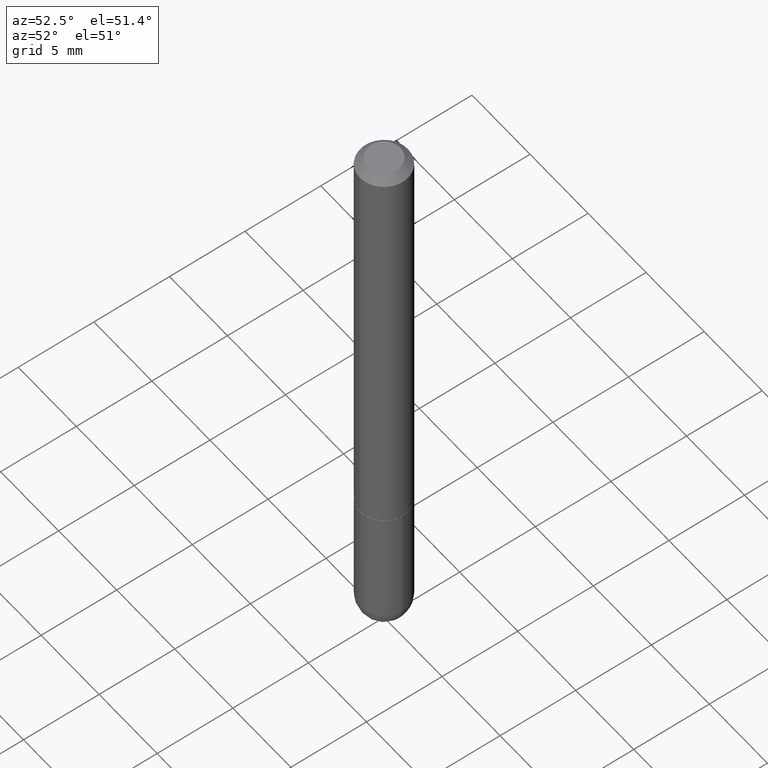
[diagram: clean part render]
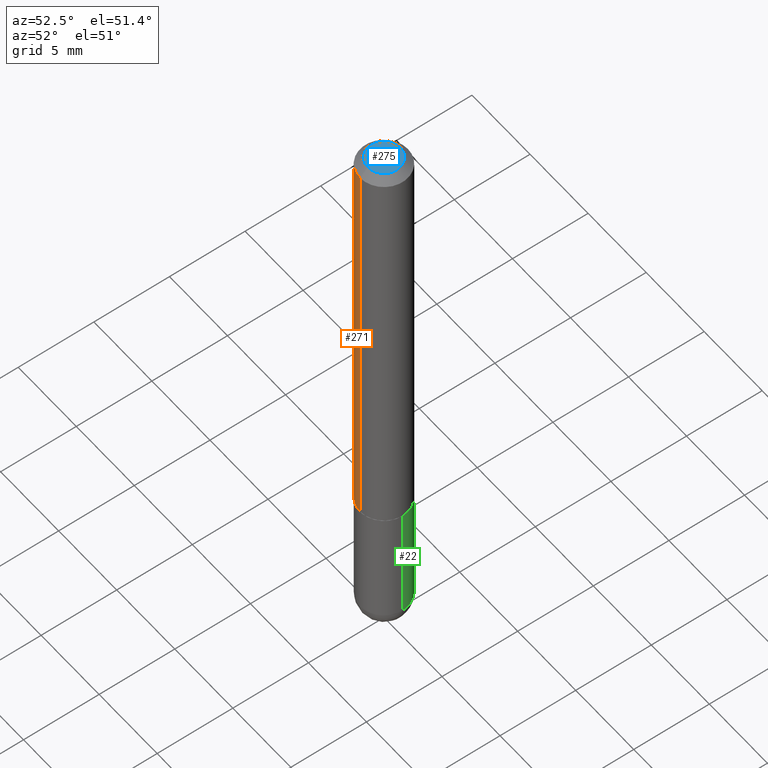
[diagram: same view with three faces highlighted in distinct colors, each labeled with its STEP entity id]
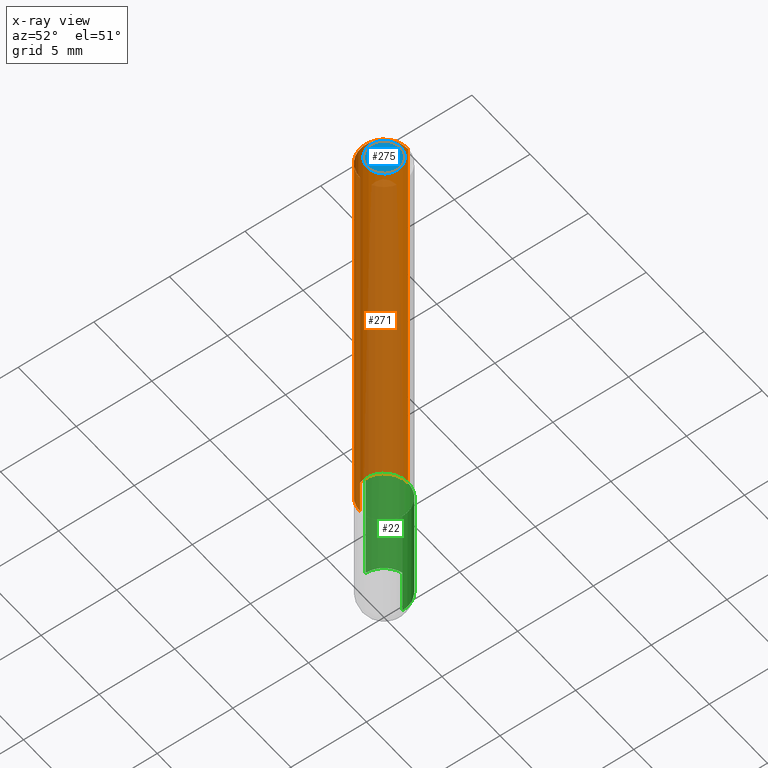
[diagram: x-ray of the same camera — body ghosted, the three highlighted faces saturated]
A machine part, auxiliary view with three faces highlighted in distinct colors.
The next image is the same camera in x-ray (body ghosted, the three faces saturated) — at least one of them is partly hidden behind the body in this view.
Their STEP definitions:

[orange] entity #271 — the highlighted cylindrical surface (edge-blend (fillet) strip) has radius 1.5875 mm, axis along (-0, 0, 1).
#5 = DIRECTION ( 'NONE',  ( -2.466183177392588152E-29, 3.461817180285283687E-15, 1.000000000000000000 ) ) ;
#16 = EDGE_CURVE ( 'NONE', #294, #335, #121, .T. ) ;
#33 = CARTESIAN_POINT ( 'NONE',  ( 4.932366354785193785E-31, -6.923634360570589906E-17, -0.02000000000000006981 ) ) ;
#36 = CYLINDRICAL_SURFACE ( 'NONE', #106, 0.06250000000000000000 ) ;
#42 = LINE ( 'NONE', #203, #337 ) ;
#47 = AXIS2_PLACEMENT_3D ( 'NONE', #33, #5, #228 ) ;
#83 = CARTESIAN_POINT ( 'NONE',  ( 4.364351673553917187E-16, 0.06249999999999988204, -0.02000000000000028491 ) ) ;
#106 = AXIS2_PLACEMENT_3D ( 'NONE', #352, #285, #136 ) ;
#113 = CARTESIAN_POINT ( 'NONE',  ( -4.364351673553642565E-16, -0.06250000000000394129, -1.123999999999999888 ) ) ;
#116 = ORIENTED_EDGE ( 'NONE', *, *, #16, .F. ) ;
#118 = VECTOR ( 'NONE', #186, 39.37007874015748143 ) ;
#121 = LINE ( 'NONE', #222, #118 ) ;
#132 = EDGE_CURVE ( 'NONE', #335, #362, #191, .T. ) ;
#136 = DIRECTION ( 'NONE',  ( -6.982962677686265922E-15, -1.000000000000000000, 3.461817180285283292E-15 ) ) ;
#142 = DIRECTION ( 'NONE',  ( -6.982962677686265133E-15, -1.000000000000000000, 4.370956789862817205E-15 ) ) ;
#167 = AXIS2_PLACEMENT_3D ( 'NONE', #236, #332, #142 ) ;
#171 = DIRECTION ( 'NONE',  ( -2.466183177392588152E-29, 3.461817180285283687E-15, 1.000000000000000000 ) ) ;
#186 = DIRECTION ( 'NONE',  ( -2.466183177392588152E-29, 3.461817180285283687E-15, 1.000000000000000000 ) ) ;
#191 = CIRCLE ( 'NONE', #47, 0.06249999999999995143 ) ;
#193 = FACE_OUTER_BOUND ( 'NONE', #276, .T. ) ;
#203 = CARTESIAN_POINT ( 'NONE',  ( -4.364351673553916201E-16, -0.06250000000000000000, 2.163635737678302058E-16 ) ) ;
#222 = CARTESIAN_POINT ( 'NONE',  ( 4.440892098500625669E-16, 0.06250000000000000000, -2.163635737678302058E-16 ) ) ;
#228 = DIRECTION ( 'NONE',  ( -6.982962677686265922E-15, -1.000000000000000000, 3.483106191921938315E-15 ) ) ;
#233 = CARTESIAN_POINT ( 'NONE',  ( 4.440892098500769143E-16, 0.06249999999999615585, -1.124000000000000332 ) ) ;
#236 = CARTESIAN_POINT ( 'NONE',  ( 2.771989891389269485E-29, -3.891082510640658844E-15, -1.124000000000000110 ) ) ;
#271 = ADVANCED_FACE ( 'NONE', ( #193 ), #36, .T. ) ;
#276 = EDGE_LOOP ( 'NONE', ( #116, #410, #359, #341 ) ) ;
#285 = DIRECTION ( 'NONE',  ( -2.466183177392588152E-29, 3.461817180285283687E-15, 1.000000000000000000 ) ) ;
#294 = VERTEX_POINT ( 'NONE', #233 ) ;
#301 = CARTESIAN_POINT ( 'NONE',  ( -4.287811248607198352E-16, -0.06250000000000001388, -0.01999999999999985123 ) ) ;
#321 = EDGE_CURVE ( 'NONE', #329, #362, #42, .T. ) ;
#329 = VERTEX_POINT ( 'NONE', #113 ) ;
#332 = DIRECTION ( 'NONE',  ( -2.466183177392588152E-29, 3.461817180285283687E-15, 1.000000000000000000 ) ) ;
#335 = VERTEX_POINT ( 'NONE', #83 ) ;
#337 = VECTOR ( 'NONE', #171, 39.37007874015748143 ) ;
#341 = ORIENTED_EDGE ( 'NONE', *, *, #132, .F. ) ;
#343 = CIRCLE ( 'NONE', #167, 0.06250000000000005551 ) ;
#345 = EDGE_CURVE ( 'NONE', #294, #329, #343, .T. ) ;
#352 = CARTESIAN_POINT ( 'NONE',  ( 0.000000000000000000, 0.000000000000000000, 0.000000000000000000 ) ) ;
#359 = ORIENTED_EDGE ( 'NONE', *, *, #321, .T. ) ;
#362 = VERTEX_POINT ( 'NONE', #301 ) ;
#410 = ORIENTED_EDGE ( 'NONE', *, *, #345, .T. ) ;

[blue] entity #275 — the highlighted planar face has unit normal (0, -0, -1).
#4 = CARTESIAN_POINT ( 'NONE',  ( -7.443031093115869579E-45, 1.044789095463218177E-30, 3.018036600584200558E-16 ) ) ;
#69 = DIRECTION ( 'NONE',  ( -2.466183177392588152E-29, 3.461817180285283687E-15, 1.000000000000000000 ) ) ;
#81 = ORIENTED_EDGE ( 'NONE', *, *, #151, .T. ) ;
#82 = AXIS2_PLACEMENT_3D ( 'NONE', #98, #289, #260 ) ;
#88 = CIRCLE ( 'NONE', #187, 0.04249999999999961448 ) ;
#98 = CARTESIAN_POINT ( 'NONE',  ( 2.967759138016636432E-16, 0.04249999999999961448, 3.774599867086833598E-18 ) ) ;
#151 = EDGE_CURVE ( 'NONE', #189, #165, #238, .T. ) ;
#165 = VERTEX_POINT ( 'NONE', #261 ) ;
#187 = AXIS2_PLACEMENT_3D ( 'NONE', #346, #380, #229 ) ;
#189 = VERTEX_POINT ( 'NONE', #258 ) ;
#206 = EDGE_CURVE ( 'NONE', #165, #189, #88, .T. ) ;
#229 = DIRECTION ( 'NONE',  ( -6.982962677686266711E-15, -1.000000000000000000, 3.461817180285284476E-15 ) ) ;
#238 = CIRCLE ( 'NONE', #277, 0.04249999999999961448 ) ;
#258 = CARTESIAN_POINT ( 'NONE',  ( -3.601761448830035670E-16, -0.04249999999999961448, 4.489308902205433395E-16 ) ) ;
#260 = DIRECTION ( 'NONE',  ( 6.982962677686265922E-15, 1.000000000000000000, -3.461817180285283687E-15 ) ) ;
#261 = CARTESIAN_POINT ( 'NONE',  ( 3.666055405785276810E-16, 0.04249999999999961448, 1.546764298962968461E-16 ) ) ;
#275 = ADVANCED_FACE ( 'NONE', ( #322 ), #291, .F. ) ;
#277 = AXIS2_PLACEMENT_3D ( 'NONE', #4, #69, #379 ) ;
#289 = DIRECTION ( 'NONE',  ( 2.466183177392587871E-29, -3.461817180285283687E-15, -1.000000000000000000 ) ) ;
#291 = PLANE ( 'NONE',  #82 ) ;
#322 = FACE_OUTER_BOUND ( 'NONE', #397, .T. ) ;
#346 = CARTESIAN_POINT ( 'NONE',  ( -7.443031093115869579E-45, 1.044789095463218177E-30, 3.018036600584200558E-16 ) ) ;
#379 = DIRECTION ( 'NONE',  ( -6.982962677686266711E-15, -1.000000000000000000, 3.461817180285284476E-15 ) ) ;
#380 = DIRECTION ( 'NONE',  ( -2.466183177392588152E-29, 3.461817180285283687E-15, 1.000000000000000000 ) ) ;
#392 = ORIENTED_EDGE ( 'NONE', *, *, #206, .T. ) ;
#397 = EDGE_LOOP ( 'NONE', ( #392, #81 ) ) ;

[green] entity #22 — the highlighted cylindrical surface (edge-blend (fillet) strip) has radius 1.5875 mm, axis along (-0, 0, 1).
#1 = CIRCLE ( 'NONE', #389, 0.06249999999999995143 ) ;
#22 = ADVANCED_FACE ( 'NONE', ( #314 ), #281, .T. ) ;
#26 = EDGE_CURVE ( 'NONE', #242, #202, #198, .T. ) ;
#27 = DIRECTION ( 'NONE',  ( 1.000000000000000000, -6.982962677686268288E-15, 0.000000000000000000 ) ) ;
#34 = EDGE_CURVE ( 'NONE', #196, #300, #127, .T. ) ;
#65 = CARTESIAN_POINT ( 'NONE',  ( 3.515361408891134418E-29, -5.019004424587023131E-15, -1.437500000000000222 ) ) ;
#67 = CARTESIAN_POINT ( 'NONE',  ( 3.515361408891134418E-29, -5.019004424587023131E-15, -1.437500000000000222 ) ) ;
#73 = AXIS2_PLACEMENT_3D ( 'NONE', #409, #148, #272 ) ;
#75 = LINE ( 'NONE', #172, #369 ) ;
#84 = EDGE_LOOP ( 'NONE', ( #138, #237, #331, #124, #210 ) ) ;
#99 = CARTESIAN_POINT ( 'NONE',  ( 0.06250000000000001388, -4.364351673553930105E-15, -1.124999999999999778 ) ) ;
#123 = CARTESIAN_POINT ( 'NONE',  ( 2.751152406958278111E-29, -3.927916506198538435E-15, -1.124999999999999778 ) ) ;
#124 = ORIENTED_EDGE ( 'NONE', *, *, #315, .F. ) ;
#127 = CIRCLE ( 'NONE', #404, 0.06250000000000001388 ) ;
#130 = DIRECTION ( 'NONE',  ( 1.000000000000000000, -6.982962677686268288E-15, 0.000000000000000000 ) ) ;
#131 = CARTESIAN_POINT ( 'NONE',  ( 4.364351673554256397E-16, 0.06249999999999480971, -1.437500000000000444 ) ) ;
#133 = EDGE_CURVE ( 'NONE', #263, #242, #1, .T. ) ;
#138 = ORIENTED_EDGE ( 'NONE', *, *, #26, .T. ) ;
#141 = EDGE_CURVE ( 'NONE', #202, #300, #257, .T. ) ;
#148 = DIRECTION ( 'NONE',  ( -2.445468806185136597E-29, 3.491481338843145583E-15, 1.000000000000000000 ) ) ;
#161 = DIRECTION ( 'NONE',  ( -2.445468806185136877E-29, 3.491481338843145188E-15, 1.000000000000000000 ) ) ;
#162 = CARTESIAN_POINT ( 'NONE',  ( -0.06249999999999995143, -4.029371255542718167E-15, -1.437500000000000222 ) ) ;
#172 = CARTESIAN_POINT ( 'NONE',  ( 0.06249999999999997918, -4.364351673553915708E-16, 3.047610484872459170E-30 ) ) ;
#196 = VERTEX_POINT ( 'NONE', #99 ) ;
#198 = CIRCLE ( 'NONE', #303, 0.06249999999999995143 ) ;
#202 = VERTEX_POINT ( 'NONE', #162 ) ;
#210 = ORIENTED_EDGE ( 'NONE', *, *, #133, .T. ) ;
#214 = VECTOR ( 'NONE', #161, 39.37007874015748143 ) ;
#215 = DIRECTION ( 'NONE',  ( 1.000000000000000000, -6.982962677686269077E-15, 0.000000000000000000 ) ) ;
#237 = ORIENTED_EDGE ( 'NONE', *, *, #141, .T. ) ;
#242 = VERTEX_POINT ( 'NONE', #131 ) ;
#247 = DIRECTION ( 'NONE',  ( -2.445468806185136597E-29, 3.491481338843145583E-15, 1.000000000000000000 ) ) ;
#257 = LINE ( 'NONE', #288, #214 ) ;
#262 = DIRECTION ( 'NONE',  ( -2.445468806185136877E-29, 3.491481338843145188E-15, 1.000000000000000000 ) ) ;
#263 = VERTEX_POINT ( 'NONE', #318 ) ;
#272 = DIRECTION ( 'NONE',  ( 1.000000000000000000, -6.982962677686267499E-15, 4.876176775795936353E-29 ) ) ;
#278 = DIRECTION ( 'NONE',  ( -2.445468806185136597E-29, 3.491481338843145583E-15, 1.000000000000000000 ) ) ;
#281 = CYLINDRICAL_SURFACE ( 'NONE', #73, 0.06249999999999997918 ) ;
#287 = DIRECTION ( 'NONE',  ( -2.445468806185136597E-29, 3.491481338843145583E-15, 1.000000000000000000 ) ) ;
#288 = CARTESIAN_POINT ( 'NONE',  ( -0.06249999999999997918, 4.440892098500624683E-16, -3.074334431409315413E-30 ) ) ;
#300 = VERTEX_POINT ( 'NONE', #396 ) ;
#303 = AXIS2_PLACEMENT_3D ( 'NONE', #65, #247, #27 ) ;
#314 = FACE_OUTER_BOUND ( 'NONE', #84, .T. ) ;
#315 = EDGE_CURVE ( 'NONE', #263, #196, #75, .T. ) ;
#318 = CARTESIAN_POINT ( 'NONE',  ( 0.06249999999999995143, -4.909895632748172453E-15, -1.437500000000000222 ) ) ;
#331 = ORIENTED_EDGE ( 'NONE', *, *, #34, .F. ) ;
#369 = VECTOR ( 'NONE', #262, 39.37007874015748143 ) ;
#389 = AXIS2_PLACEMENT_3D ( 'NONE', #67, #287, #130 ) ;
#396 = CARTESIAN_POINT ( 'NONE',  ( -0.06250000000000001388, -4.029371255542718167E-15, -1.124999999999999778 ) ) ;
#404 = AXIS2_PLACEMENT_3D ( 'NONE', #123, #278, #215 ) ;
#409 = CARTESIAN_POINT ( 'NONE',  ( 0.000000000000000000, 0.000000000000000000, 0.000000000000000000 ) ) ;